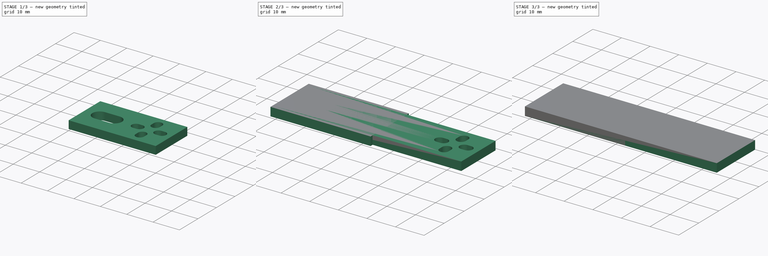
[diagram: build sequence overview — one tinted view per stage of 3, left to right]
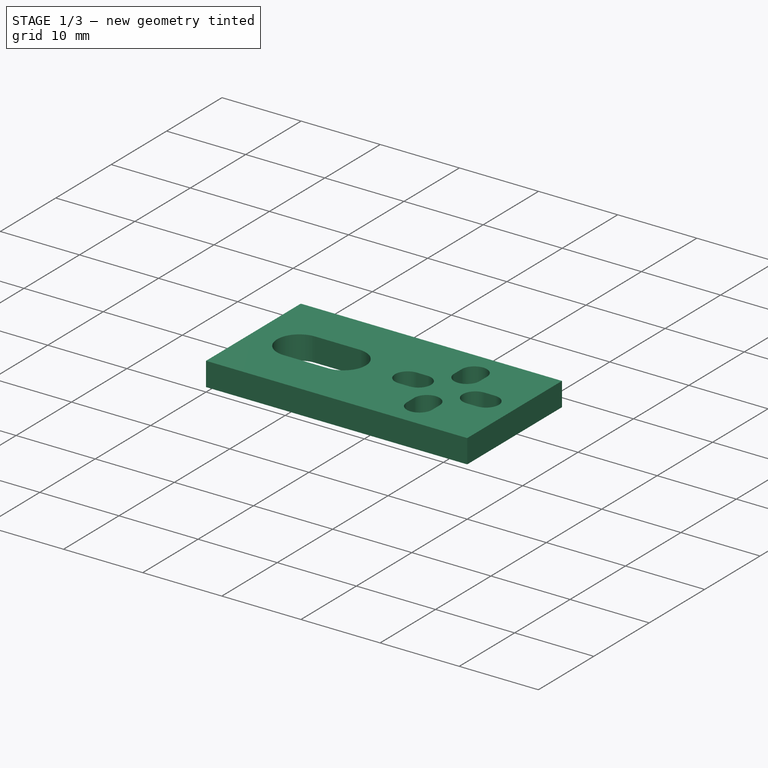
[diagram: stage 1 of 3 — iso view after this stage's code; geometry added in this stage tinted green]
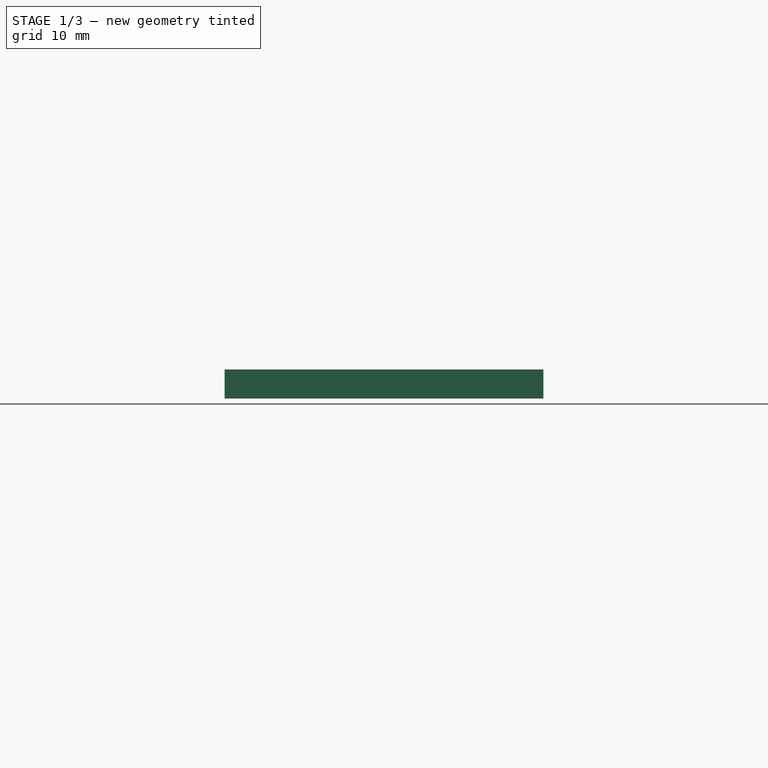
[diagram: stage 1 of 3 — front view after this stage's code; geometry added in this stage tinted green]
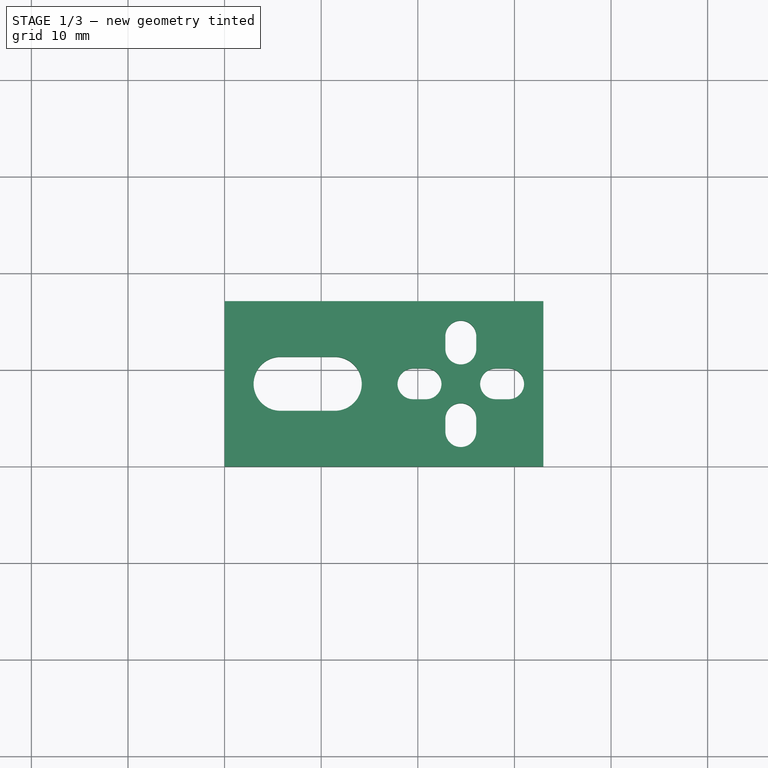
[diagram: stage 1 of 3 — top view after this stage's code; geometry added in this stage tinted green]
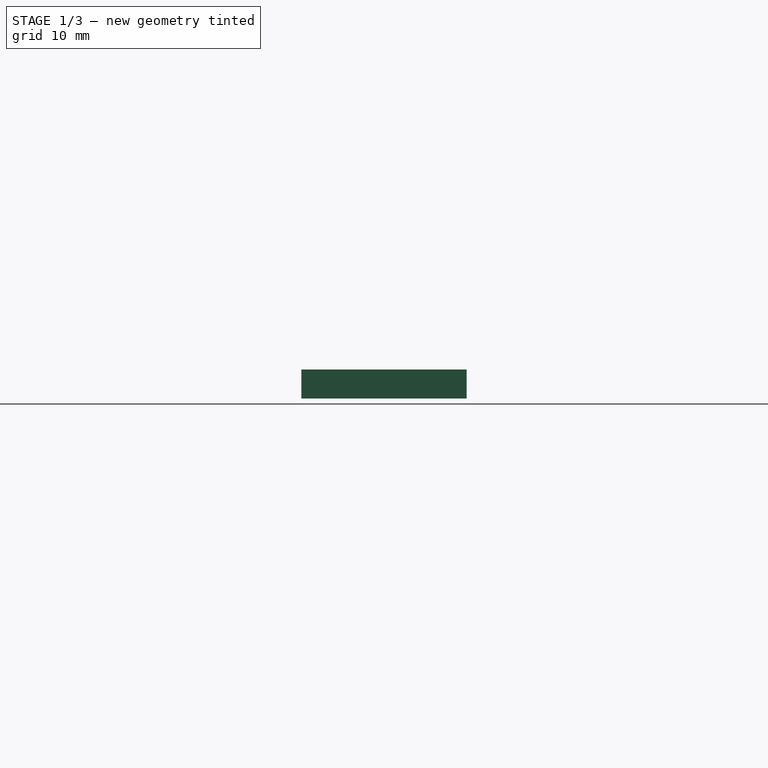
[diagram: stage 1 of 3 — right view after this stage's code; geometry added in this stage tinted green]
FCSTD DOCUMENT  (FreeCAD 0.18R16146 (Git))
Label: limit_switch_plate
License: All rights reserved
LicenseURL: http://en.wikipedia.org/wiki/All_rights_reserved
objects: Path::FeaturePython×10, Part::FeaturePython×4, Sketcher::SketchObject×2, PartDesign::Pad×2, PartDesign::Body×2, App::Part×2, App::FeaturePython×2, App::DocumentObjectGroup×2, Path::FeatureCompoundPython×2
note: 16 computed .brp shape members not serialized (recipe doc carries the construction recipe); baked Part::Feature solids carry a one-line shape summary decoded from their .brp

FEATURE [PartDesign::Body] Body  label="Long"
  Group = -> [Sketch,Pad]
  Origin = -> Origin001
  Tip = -> Pad
FEATURE [App::Part] Part  label="Long_Part"
  Group = -> [Body]
  Origin = -> Origin
FEATURE [Sketcher::SketchObject] Sketch001
  MapMode = 5
  Support = -> [XY_Plane002]
  sketch-geometry (33):
    g0: LineSegment StartX=0 StartY=17.1 StartZ=0 EndX=33 EndY=17.1 EndZ=0
    g1: LineSegment StartX=33 StartY=17.1 StartZ=0 EndX=33 EndY=0 EndZ=0
    g2: LineSegment StartX=33 StartY=0 StartZ=0 EndX=-4.7962e-12 EndY=0 EndZ=0
    g3: LineSegment StartX=-4.7941e-12 StartY=0 StartZ=0 EndX=0 EndY=17.1 EndZ=0
    g4: ArcOfCircle CenterX=24.45 CenterY=13.5 CenterZ=0 NormalX=0 NormalY=0 NormalZ=1 AngleXU=0 Radius=1.6 StartAngle=2e-16 EndAngle=3.14159
    g5: ArcOfCircle CenterX=24.45 CenterY=12.15 CenterZ=0 NormalX=0 NormalY=0 NormalZ=1 AngleXU=0 Radius=1.6 StartAngle=3.14159 EndAngle=6.28319
    g6: LineSegment StartX=22.85 StartY=13.5 StartZ=0 EndX=22.85 EndY=12.15 EndZ=0
    g7: LineSegment StartX=26.05 StartY=13.5 StartZ=0 EndX=26.05 EndY=12.15 EndZ=0
    g8: ArcOfCircle CenterX=24.45 CenterY=4.95 CenterZ=0 NormalX=0 NormalY=0 NormalZ=1 AngleXU=0 Radius=1.6 StartAngle=1e-16 EndAngle=3.14159
    g9: ArcOfCircle CenterX=24.45 CenterY=3.6 CenterZ=0 NormalX=0 NormalY=0 NormalZ=1 AngleXU=0 Radius=1.6 StartAngle=3.14159 EndAngle=6.28319
    g10: LineSegment StartX=22.85 StartY=4.95 StartZ=0 EndX=22.85 EndY=3.6 EndZ=0
    g11: LineSegment StartX=26.05 StartY=4.95 StartZ=0 EndX=26.05 EndY=3.6 EndZ=0
    g12: ArcOfCircle CenterX=19.5 CenterY=8.55 CenterZ=0 NormalX=0 NormalY=0 NormalZ=1 AngleXU=0 Radius=1.6 StartAngle=1.5708 EndAngle=4.71239
    g13: ArcOfCircle CenterX=20.85 CenterY=8.55 CenterZ=0 NormalX=0 NormalY=0 NormalZ=1 AngleXU=0 Radius=1.6 StartAngle=4.71239 EndAngle=7.85398
    g14: LineSegment StartX=19.5 StartY=6.95 StartZ=0 EndX=20.85 EndY=6.95 EndZ=0
    g15: LineSegment StartX=19.5 StartY=10.15 StartZ=0 EndX=20.85 EndY=10.15 EndZ=0
    g16: ArcOfCircle CenterX=28.05 CenterY=8.55 CenterZ=0 NormalX=0 NormalY=0 NormalZ=1 AngleXU=0 Radius=1.6 StartAngle=1.5708 EndAngle=4.71239
    g17: ArcOfCircle CenterX=29.4 CenterY=8.55 CenterZ=0 NormalX=0 NormalY=0 NormalZ=1 AngleXU=0 Radius=1.6 StartAngle=4.71239 EndAngle=7.85398
    g18: LineSegment StartX=28.05 StartY=6.95 StartZ=0 EndX=29.4 EndY=6.95 EndZ=0
    g19: LineSegment StartX=28.05 StartY=10.15 StartZ=0 EndX=29.4 EndY=10.15 EndZ=0
    g20: ArcOfCircle CenterX=5.8 CenterY=8.55 CenterZ=0 NormalX=0 NormalY=0 NormalZ=1 AngleXU=0 Radius=2.8 StartAngle=1.5708 EndAngle=4.71239
    g21: ArcOfCircle CenterX=11.4 CenterY=8.55 CenterZ=0 NormalX=0 NormalY=0 NormalZ=1 AngleXU=0 Radius=2.8 StartAngle=4.71239 EndAngle=7.85398
    g22: LineSegment StartX=5.8 StartY=5.75 StartZ=0 EndX=11.4 EndY=5.75 EndZ=0
    g23: LineSegment StartX=5.8 StartY=11.35 StartZ=0 EndX=11.4 EndY=11.35 EndZ=0
    g24: LineSegment [constr] StartX=5.8 StartY=8.55 StartZ=0 EndX=24.45 EndY=8.55 EndZ=0
    g25: LineSegment [constr] StartX=24.45 StartY=8.55 StartZ=0 EndX=33 EndY=8.55 EndZ=0
    g26: Circle [constr] CenterX=24.45 CenterY=8.55 CenterZ=0 NormalX=0 NormalY=0 NormalZ=1 AngleXU=0 Radius=3.6
    g27: ArcOfCircle [constr] CenterX=11.4 CenterY=11.35 CenterZ=0 NormalX=0 NormalY=0 NormalZ=1 AngleXU=0 Radius=5.6 StartAngle=3.14159 EndAngle=4.71239
    g28: LineSegment [constr] StartX=24.45 StartY=10.55 StartZ=0 EndX=24.45 EndY=6.55 EndZ=0
    g29: LineSegment [constr] StartX=24.45 StartY=15.1 StartZ=0 EndX=24.45 EndY=17.1 EndZ=0
    g30: LineSegment [constr] StartX=24.45 StartY=12.15 StartZ=0 EndX=24.45 EndY=10.55 EndZ=0
    g31: LineSegment [constr] StartX=-2.3943e-12 StartY=8.55 StartZ=0 EndX=3 EndY=8.55 EndZ=0
    g32: LineSegment [constr] StartX=31 StartY=8.55 StartZ=0 EndX=33 EndY=8.55 EndZ=0
  constraints (84):
    c: Coincident(g0,g1)
    c: Coincident(g1,g2)
    c: Coincident(g2,g3)
    c: Coincident(g3,g0)
    c: Horizontal(g0)
    c: Horizontal(g2)
    c: Vertical(g1)
    c: PointOnObject(g0,g-2)
    c: PointOnObject(g1,g-1)
    c: Tangent(g4,g7) = 1.5708
    c: Tangent(g4,g6) = -1.5708
    c: Tangent(g6,g5) = -1.5708
    c: Tangent(g7,g5) = 1.5708
    c: Vertical(g6)
    c: Tangent(g8,g11) = 1.5708
    c: Tangent(g8,g10) = -1.5708
    c: Tangent(g10,g9) = -1.5708
    c: Tangent(g11,g9) = 1.5708
    c: Vertical(g10)
    c: Tangent(g12,g15) = 1.5708
    c: Tangent(g12,g14) = -1.5708
    c: Tangent(g14,g13) = -1.5708
    c: Tangent(g15,g13) = 1.5708
    c: Horizontal(g14)
    c: Tangent(g16,g19) = 1.5708
    c: Tangent(g16,g18) = -1.5708
    c: Tangent(g18,g17) = -1.5708
    c: Tangent(g19,g17) = 1.5708
    c: Horizontal(g18)
    c: Tangent(g20,g23) = 1.5708
    c: Tangent(g20,g22) = -1.5708
    c: Tangent(g22,g21) = -1.5708
    c: Tangent(g23,g21) = 1.5708
    c: Horizontal(g22)
    c: Symmetric(g0,g2,g24)
    c: Symmetric(g20,g20,g24)
    c: Symmetric(g12,g12,g24)
    c: Equal(g13,g5)
    c: Equal(g13,g8)
    c: Equal(g13,g16)
    c: Symmetric(g16,g16,g24)
    c: Coincident(g25,g24)
    c: PointOnObject(g25,g1)
    c: Symmetric(g8,g5,g25)
    c: Equal(g19,g6)
    c: Equal(g19,g14)
    c: Equal(g18,g11)
    c: Coincident(g26,g24)
    c: PointOnObject(g16,g26)
    c: PointOnObject(g8,g26)
    c: Diameter(g17) = 3.2
    c: Diameter(g21) = 5.6
    c: DistanceY(g3,g3) = 17.1
    c: Coincident(g27,g21)
    c: Coincident(g27,g21)
    c: Coincident(g27,g20)
    c: PointOnObject(g28,g5)
    c: PointOnObject(g28,g8)
    c: Vertical(g28)
    c: DistanceY(g28,g28) = 4
    c: PointOnObject(g24,g28)
    c: PointOnObject(g29,g0)
    c: Perpendicular(g4,g29)
    c: Vertical(g29)
    c: DistanceY(g29,g29) = 2
    c: PointOnObject(g29,g4)
    c: Parallel(g6,g7)
    c: Parallel(g10,g11)
    c: Coincident(g30,g5)
    c: Coincident(g30,g28)
    c: Vertical(g30)
    c: PointOnObject(g13,g26)
    c: Coincident(g24,g20)
    c: Horizontal(g31)
    c: Perpendicular(g20,g31)
    c: DistanceX(g31,g31) = 3
    c: PointOnObject(g31,g20)
    c: PointOnObject(g31,g3)
    c: Symmetric(g0,g1,g25)
    c: PointOnObject(g32,g17)
    c: Coincident(g32,g25)
    c: Perpendicular(g17,g32)
    c: Equal(g32,g29)
    c: DistanceX(g0,g0) = 33
FEATURE [PartDesign::Pad] Pad001
  Length = 3
  Length2 = 100
  Profile = -> Sketch001
  Type = 0
FEATURE [Path::FeaturePython] Contour  # Path/CAM operation (typed FeaturePython)
  Active = true
  AreaParams:
    Tolerance = 1e-07
    FitArcs = True
    Simplify = False
    CleanDistance = 0.0
    Accuracy = 0.01
    Unit = 1.0
    MinArcPoints = 4
    MaxArcPoints = 100
    ClipperScale = 10000000.0
    Fill = 0
    Coplanar = 2
    Reorient = True
    Outline = False
    Explode = False
    OpenMode = 0
    Deflection = 0.01
    SubjectFill = 0
    ClipFill = 0
    Offset = 1.5
    ExtraPass = 0
    Stepover = 0.0
    LastStepover = 0.0
    JoinType = 0
    EndType = 0
    MiterLimit = 2.0
    RoundPrecision = 0.0
    PocketMode = 0
    ToolRadius = 1.0
    PocketExtraOffset = 0.0
    PocketStepover = 0.0
    PocketLastStepover = 0.0
    FromCenter = False
    Angle = 45.0
    AngleShift = 0.0
    Shift = 0.0
    Thicken = False
    SectionCount = -1
    Stepdown = 1.0
    SectionOffset = 0.0
    SectionTolerance = 1e-06
    SectionMode = 2
    Project = False
  ClearanceHeight = 8
  Direction = 1
  FinalDepth = -0.2
  JoinType = 0
  MiterLimit = 0.1
  OffsetExtra = 0
  OpFinalDepth = 0
  OpStartDepth = 3
  OpStockZMax = 3
  OpStockZMin = 0
  OpToolDiameter = 3
  PathParams = {'orientation': 0, 'feedrate': 13.33, 'feedrate_v': 6.66, 'verbose': True, 'resume_height': 6.0, 'retraction': 8.0, 'return_end': True, 'preamble': False}
  SafeHeight = 6
  Side = 0
  StartDepth = 3.2
  StartPoint = (0,0,0)
  StepDown = 0.3
  ToolController = -> T3__AluminiumMill
  UseComp = true
  UseStartPoint = false
  expr: ClearanceHeight = OpStockZMax + SetupSheet.ClearanceHeightOffset
  expr: SafeHeight = OpStockZMax + SetupSheet.SafeHeightOffset
  expr: StepDown = 0.3
  expr: FinalDepth = -0.2mm
  expr: StartDepth = 3.2mm
FEATURE [Path::FeaturePython] Profile_Edges  # Path/CAM operation (typed FeaturePython)
  Active = true
  AreaParams:
    Tolerance = 1e-07
    FitArcs = True
    Simplify = False
    CleanDistance = 0.0
    Accuracy = 0.01
    Unit = 1.0
    MinArcPoints = 4
    MaxArcPoints = 100
    ClipperScale = 10000000.0
    Fill = 0
    Coplanar = 0
    Reorient = True
    Outline = False
    Explode = False
    OpenMode = 0
    Deflection = 0.01
    SubjectFill = 0
    ClipFill = 0
    Offset = -1.5
    ExtraPass = 0
    Stepover = 0.0
    LastStepover = 0.0
    JoinType = 0
    EndType = 0
    MiterLimit = 2.0
    RoundPrecision = 0.0
    PocketMode = 0
    ToolRadius = 1.0
    PocketExtraOffset = 0.0
    PocketStepover = 0.0
    PocketLastStepover = 0.0
    FromCenter = False
    Angle = 45.0
    AngleShift = 0.0
    Shift = 0.0
    Thicken = False
    SectionCount = -1
    Stepdown = 1.0
    SectionOffset = 0.0
    SectionTolerance = 1e-06
    SectionMode = 2
    Project = False
  Base = -> [Clone]
  ClearanceHeight = 8
  Direction = 0
  FinalDepth = -0.2
  JoinType = 0
  MiterLimit = 0.1
  OffsetExtra = 0
  OpFinalDepth = 3
  OpStartDepth = 3.3
  OpStockZMax = 3
  OpStockZMin = 0
  OpToolDiameter = 3
  PathParams = {'orientation': 1, 'feedrate': 13.33, 'feedrate_v': 6.66, 'verbose': True, 'resume_height': 6.0, 'retraction': 8.0, 'return_end': True, 'preamble': False}
  SafeHeight = 6
  Side = 1
  StartDepth = 3.2
  StartPoint = (0,0,0)
  StepDown = 0.3
  ToolController = -> T3__AluminiumMill
  UseComp = true
  UseStartPoint = false
  expr: ClearanceHeight = OpStockZMax + SetupSheet.ClearanceHeightOffset
  expr: SafeHeight = OpStockZMax + SetupSheet.SafeHeightOffset
  expr: StepDown = 0.3
  expr: FinalDepth = -0.2mm
  expr: StartDepth = 3.2mm
FEATURE [Path::FeaturePython] TagDressup001  # Path/CAM operation (typed FeaturePython)
  Angle = 45
  Base = -> Contour
  Height = 0.8
  Positions = (4) [(48.75,18.6,0),(16.25,18.6,0),(16.25,-1.5,0),(48.75,-1.5,0)]
  Radius = 0
  SegmentationFactor = 50
  Width = 2
FEATURE [Path::FeatureCompoundPython] Operations  # Path/CAM operation (typed FeaturePython)
  Group = -> [Profile_Edges,TagDressup001]
  UsePlacements = false
FEATURE [Path::FeaturePython] Job  label="LongPlate_Job"  # Path/CAM operation (typed FeaturePython)
  GeometryTolerance = 0.01
  Model = -> Model
  Operations = -> Operations
  PostProcessor = 1
  PostProcessorOutputFile = gcode/long_plate.ngc
  SetupSheet = -> SetupSheet
  Stock = -> Stock
  ToolController = -> [T3__AluminiumMill]
FEATURE [Path::FeaturePython] T3__AluminiumMill001  label="T3: AluminiumMill001"  # Path/CAM operation (typed FeaturePython)
  HorizFeed = 13.33
  HorizRapid = 33.33
  SpindleDir = 0
  SpindleSpeed = 17000
  ToolNumber = 3
  VertFeed = 6.66
  VertRapid = 33.33
  expr: VertRapid = SetupSheet001.VertRapid
  expr: HorizFeed = 800mm / min
FEATURE [Path::FeaturePython] Contour001  # Path/CAM operation (typed FeaturePython)
  Active = true
  AreaParams:
    Tolerance = 1e-07
    FitArcs = True
    Simplify = False
    CleanDistance = 0.0
    Accuracy = 0.01
    Unit = 1.0
    MinArcPoints = 4
    MaxArcPoints = 100
    ClipperScale = 10000000.0
    Fill = 0
    Coplanar = 2
    Reorient = True
    Outline = False
    Explode = False
    OpenMode = 0
    Deflection = 0.01
    SubjectFill = 0
    ClipFill = 0
    Offset = 1.5
    ExtraPass = 0
    Stepover = 0.0
    LastStepover = 0.0
    JoinType = 0
    EndType = 0
    MiterLimit = 2.0
    RoundPrecision = 0.0
    PocketMode = 0
    ToolRadius = 1.0
    PocketExtraOffset = 0.0
    PocketStepover = 0.0
    PocketLastStepover = 0.0
    FromCenter = False
    Angle = 45.0
    AngleShift = 0.0
    Shift = 0.0
    Thicken = False
    SectionCount = -1
    Stepdown = 1.0
    SectionOffset = 0.0
    SectionTolerance = 1e-06
    SectionMode = 2
    Project = False
  ClearanceHeight = 8
  Direction = 1
  FinalDepth = -0.2
  JoinType = 0
  MiterLimit = 0.1
  OffsetExtra = 0
  OpFinalDepth = 0
  OpStartDepth = 3
  OpStockZMax = 3
  OpStockZMin = 0
  OpToolDiameter = 3
  PathParams = {'orientation': 0, 'feedrate': 13.33, 'feedrate_v': 6.66, 'verbose': True, 'resume_height': 6.0, 'retraction': 8.0, 'return_end': True, 'preamble': False}
  SafeHeight = 6
  Side = 0
  StartDepth = 3.2
  StartPoint = (0,0,0)
  StepDown = 0.3
  ToolController = -> T3__AluminiumMill001
  UseComp = true
  UseStartPoint = false
  expr: ClearanceHeight = OpStockZMax + SetupSheet.ClearanceHeightOffset
  expr: SafeHeight = OpStockZMax + SetupSheet.SafeHeightOffset
  expr: StepDown = 0.3
  expr: FinalDepth = -0.2mm
  expr: StartDepth = 3.2mm
FEATURE [App::FeaturePython] SetupSheet001  # Path/CAM operation (typed FeaturePython)
  ClearanceHeightExpression = OpStockZMax+SetupSheet.ClearanceHeightOffset
  ClearanceHeightOffset = 5
  FinalDepthExpression = -0.2mm
  HorizRapid = 33.33
  SafeHeightExpression = OpStockZMax+SetupSheet.SafeHeightOffset
  SafeHeightOffset = 3
  StartDepthExpression = 3.2mm
  StepDownExpression = 0.3
  VertRapid = 33.33
FEATURE [Path::FeaturePython] TagDressup002  # Path/CAM operation (typed FeaturePython)
  Angle = 45
  Base = -> Contour001
  Disabled = [2,3]
  Height = 0.8
  Positions = (4) [(16.25,18.6,-0.199999),(16.25,-1.5,-0.199999),(48.75,18.6,-0.199999),(48.75,-1.5,-0.199999)]
  Radius = 0
  SegmentationFactor = 50
  Width = 2
FEATURE [Part::FeaturePython] Clone001  label="Model-Part001"  # Draft clone (typed FeaturePython)
  AttacherType = Attacher::AttachEngine3D
  Fuse = false
  Objects = -> [Part001]
  PathResource = Model
  Scale = (1,1,1)
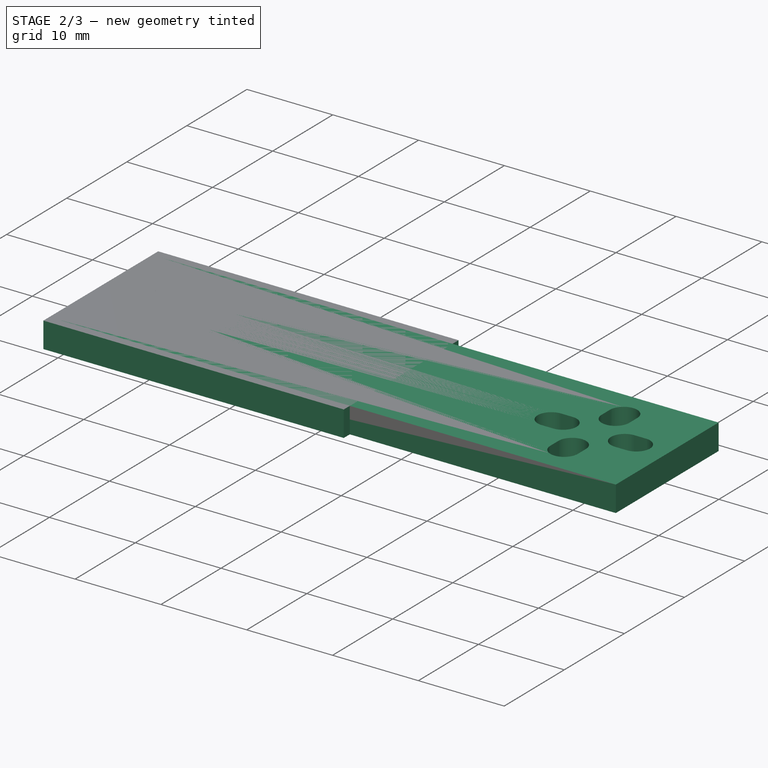
[diagram: stage 2 of 3 — iso view after this stage's code; geometry added in this stage tinted green]
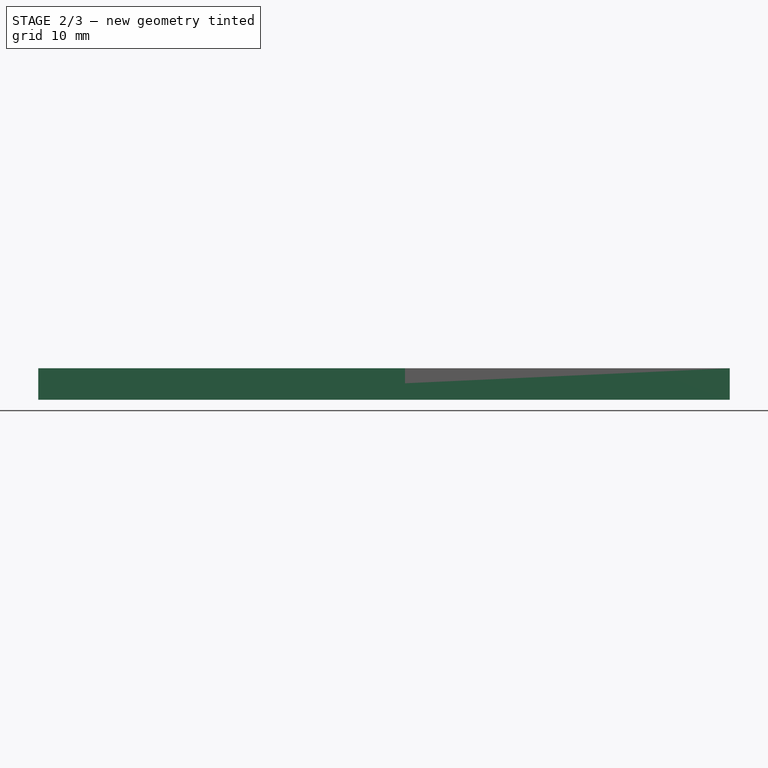
[diagram: stage 2 of 3 — front view after this stage's code; geometry added in this stage tinted green]
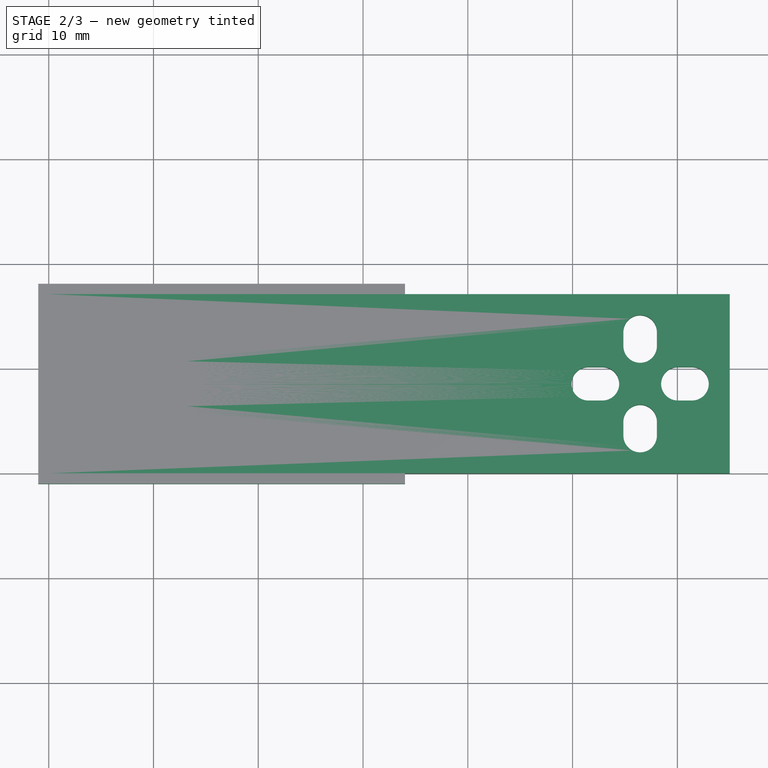
[diagram: stage 2 of 3 — top view after this stage's code; geometry added in this stage tinted green]
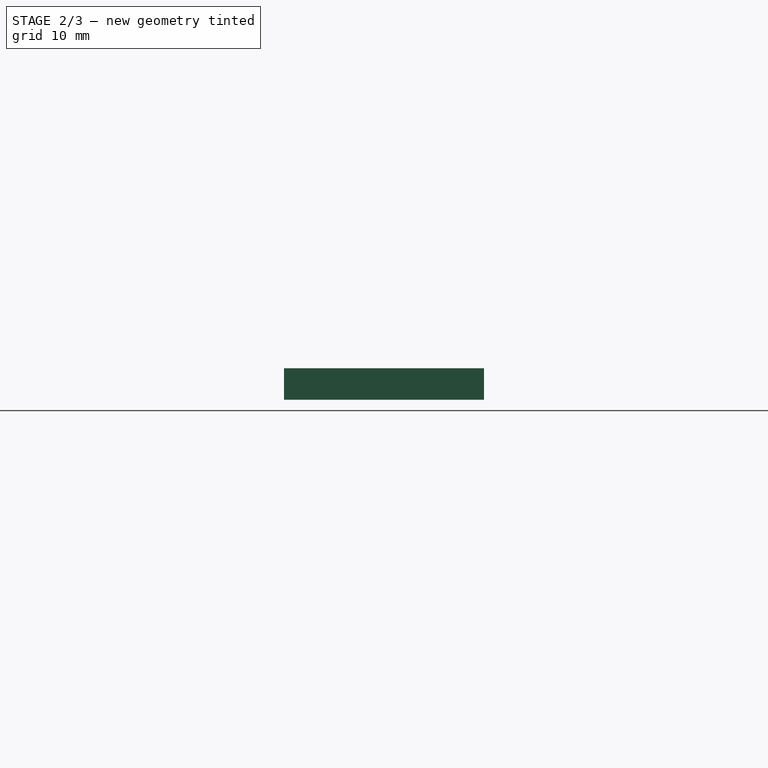
[diagram: stage 2 of 3 — right view after this stage's code; geometry added in this stage tinted green]
FEATURE [Sketcher::SketchObject] Sketch
  MapMode = 5
  Support = -> [XY_Plane001]
  sketch-geometry (33):
    g0: LineSegment StartX=0 StartY=17.1 StartZ=0 EndX=65 EndY=17.1 EndZ=0
    g1: LineSegment StartX=65 StartY=17.1 StartZ=0 EndX=65 EndY=0 EndZ=0
    g2: LineSegment StartX=65 StartY=0 StartZ=0 EndX=0 EndY=0 EndZ=0
    g3: LineSegment StartX=0 StartY=0 StartZ=0 EndX=0 EndY=17.1 EndZ=0
    g4: ArcOfCircle CenterX=56.45 CenterY=13.5 CenterZ=0 NormalX=0 NormalY=0 NormalZ=1 AngleXU=0 Radius=1.6 StartAngle=1e-16 EndAngle=3.14159
    g5: ArcOfCircle CenterX=56.45 CenterY=12.15 CenterZ=0 NormalX=0 NormalY=0 NormalZ=1 AngleXU=0 Radius=1.6 StartAngle=3.14159 EndAngle=6.28319
    g6: LineSegment StartX=54.85 StartY=13.5 StartZ=0 EndX=54.85 EndY=12.15 EndZ=0
    g7: LineSegment StartX=58.05 StartY=13.5 StartZ=0 EndX=58.05 EndY=12.15 EndZ=0
    g8: ArcOfCircle CenterX=56.45 CenterY=4.95 CenterZ=0 NormalX=0 NormalY=0 NormalZ=1 AngleXU=0 Radius=1.6 StartAngle=2e-16 EndAngle=3.14159
    g9: ArcOfCircle CenterX=56.45 CenterY=3.6 CenterZ=0 NormalX=0 NormalY=0 NormalZ=1 AngleXU=0 Radius=1.6 StartAngle=3.14159 EndAngle=6.28319
    g10: LineSegment StartX=54.85 StartY=4.95 StartZ=0 EndX=54.85 EndY=3.6 EndZ=0
    g11: LineSegment StartX=58.05 StartY=4.95 StartZ=0 EndX=58.05 EndY=3.6 EndZ=0
    g12: ArcOfCircle CenterX=51.5 CenterY=8.55 CenterZ=0 NormalX=0 NormalY=0 NormalZ=1 AngleXU=0 Radius=1.6 StartAngle=1.5708 EndAngle=4.71239
    g13: ArcOfCircle CenterX=52.85 CenterY=8.55 CenterZ=0 NormalX=0 NormalY=0 NormalZ=1 AngleXU=0 Radius=1.6 StartAngle=4.71239 EndAngle=7.85398
    g14: LineSegment StartX=51.5 StartY=6.95 StartZ=0 EndX=52.85 EndY=6.95 EndZ=0
    g15: LineSegment StartX=51.5 StartY=10.15 StartZ=0 EndX=52.85 EndY=10.15 EndZ=0
    g16: ArcOfCircle CenterX=60.05 CenterY=8.55 CenterZ=0 NormalX=0 NormalY=0 NormalZ=1 AngleXU=0 Radius=1.6 StartAngle=1.5708 EndAngle=4.71239
    g17: ArcOfCircle CenterX=61.4 CenterY=8.55 CenterZ=0 NormalX=0 NormalY=0 NormalZ=1 AngleXU=0 Radius=1.6 StartAngle=4.71239 EndAngle=7.85398
    g18: LineSegment StartX=60.05 StartY=6.95 StartZ=0 EndX=61.4 EndY=6.95 EndZ=0
    g19: LineSegment StartX=60.05 StartY=10.15 StartZ=0 EndX=61.4 EndY=10.15 EndZ=0
    g20: ArcOfCircle CenterX=5.8 CenterY=8.55 CenterZ=0 NormalX=0 NormalY=0 NormalZ=1 AngleXU=0 Radius=2.8 StartAngle=1.5708 EndAngle=4.71239
    g21: ArcOfCircle CenterX=11.4 CenterY=8.55 CenterZ=0 NormalX=0 NormalY=0 NormalZ=1 AngleXU=0 Radius=2.8 StartAngle=4.71239 EndAngle=7.85398
    g22: LineSegment StartX=5.8 StartY=5.75 StartZ=0 EndX=11.4 EndY=5.75 EndZ=0
    g23: LineSegment StartX=5.8 StartY=11.35 StartZ=0 EndX=11.4 EndY=11.35 EndZ=0
    g24: LineSegment [constr] StartX=5.8 StartY=8.55 StartZ=0 EndX=56.45 EndY=8.55 EndZ=0
    g25: LineSegment [constr] StartX=56.45 StartY=8.55 StartZ=0 EndX=65 EndY=8.55 EndZ=0
    g26: Circle [constr] CenterX=56.45 CenterY=8.55 CenterZ=0 NormalX=0 NormalY=0 NormalZ=1 AngleXU=0 Radius=3.6
    g27: ArcOfCircle [constr] CenterX=11.4 CenterY=11.35 CenterZ=0 NormalX=0 NormalY=0 NormalZ=1 AngleXU=0 Radius=5.6 StartAngle=3.14159 EndAngle=4.71239
    g28: LineSegment [constr] StartX=56.45 StartY=10.55 StartZ=0 EndX=56.45 EndY=6.55 EndZ=0
    g29: LineSegment [constr] StartX=56.45 StartY=15.1 StartZ=0 EndX=56.45 EndY=17.1 EndZ=0
    g30: LineSegment [constr] StartX=56.45 StartY=12.15 StartZ=0 EndX=56.45 EndY=10.55 EndZ=0
    g31: LineSegment [constr] StartX=1e-16 StartY=8.55 StartZ=0 EndX=3 EndY=8.55 EndZ=0
    g32: LineSegment [constr] StartX=63 StartY=8.55 StartZ=0 EndX=65 EndY=8.55 EndZ=0
  constraints (84):
    c: Coincident(g0,g1)
    c: Coincident(g1,g2)
    c: Coincident(g2,g3)
    c: Coincident(g3,g0)
    c: Horizontal(g0)
    c: Horizontal(g2)
    c: Vertical(g1)
    c: PointOnObject(g0,g-2)
    c: PointOnObject(g1,g-1)
    c: Tangent(g4,g7) = 1.5708
    c: Tangent(g4,g6) = -1.5708
    c: Tangent(g6,g5) = -1.5708
    c: Tangent(g7,g5) = 1.5708
    c: Vertical(g6)
    c: Tangent(g8,g11) = 1.5708
    c: Tangent(g8,g10) = -1.5708
    c: Tangent(g10,g9) = -1.5708
    c: Tangent(g11,g9) = 1.5708
    c: Vertical(g10)
    c: Tangent(g12,g15) = 1.5708
    c: Tangent(g12,g14) = -1.5708
    c: Tangent(g14,g13) = -1.5708
    c: Tangent(g15,g13) = 1.5708
    c: Horizontal(g14)
    c: Tangent(g16,g19) = 1.5708
    c: Tangent(g16,g18) = -1.5708
    c: Tangent(g18,g17) = -1.5708
    c: Tangent(g19,g17) = 1.5708
    c: Horizontal(g18)
    c: Tangent(g20,g23) = 1.5708
    c: Tangent(g20,g22) = -1.5708
    c: Tangent(g22,g21) = -1.5708
    c: Tangent(g23,g21) = 1.5708
    c: Horizontal(g22)
    c: Symmetric(g0,g2,g24)
    c: Symmetric(g20,g20,g24)
    c: Symmetric(g12,g12,g24)
    c: Equal(g13,g5)
    c: Equal(g13,g8)
    c: Equal(g13,g16)
    c: Symmetric(g16,g16,g24)
    c: Coincident(g25,g24)
    c: PointOnObject(g25,g1)
    c: Symmetric(g8,g5,g25)
    c: Equal(g19,g6)
    c: Equal(g19,g14)
    c: Equal(g18,g11)
    c: Coincident(g26,g24)
    c: PointOnObject(g16,g26)
    c: PointOnObject(g8,g26)
    c: Diameter(g17) = 3.2
    c: Diameter(g21) = 5.6
    c: DistanceY(g3,g3) = 17.1
    c: Coincident(g27,g21)
    c: Coincident(g27,g21)
    c: Coincident(g27,g20)
    c: PointOnObject(g28,g5)
    c: PointOnObject(g28,g8)
    c: Vertical(g28)
    c: DistanceY(g28,g28) = 4
    c: PointOnObject(g24,g28)
    c: PointOnObject(g29,g0)
    c: Perpendicular(g4,g29)
    c: Vertical(g29)
    c: DistanceY(g29,g29) = 2
    c: PointOnObject(g29,g4)
    c: Parallel(g6,g7)
    c: Parallel(g10,g11)
    c: Coincident(g30,g5)
    c: Coincident(g30,g28)
    c: Vertical(g30)
    c: PointOnObject(g13,g26)
    c: Coincident(g24,g20)
    c: Horizontal(g31)
    c: Perpendicular(g20,g31)
    c: DistanceX(g31,g31) = 3
    c: PointOnObject(g31,g20)
    c: PointOnObject(g31,g3)
    c: DistanceX(g0,g0) = 65
    c: Symmetric(g0,g1,g25)
    c: PointOnObject(g32,g17)
    c: Coincident(g32,g25)
    c: Perpendicular(g17,g32)
    c: Equal(g32,g29)
FEATURE [PartDesign::Pad] Pad
  Length = 3
  Length2 = 100
  Profile = -> Sketch
  Type = 0
FEATURE [App::DocumentObjectGroup] Model001
  Group = -> [Clone001]
FEATURE [Part::FeaturePython] Stock001  # WARN: FeaturePython — macro-defined, semantics opaque (R4)
  Base = -> Model001
  ExtXneg = 1
  ExtXpos = 1
  ExtYneg = 1
  ExtYpos = 1
  ExtZneg = 0
  ExtZpos = 0
  StockType = FromBase
FEATURE [Path::FeaturePython] Profile_Edges001  # Path/CAM operation (typed FeaturePython)
  Active = true
  AreaParams:
    Tolerance = 1e-07
    FitArcs = True
    Simplify = False
    CleanDistance = 0.0
    Accuracy = 0.01
    Unit = 1.0
    MinArcPoints = 4
    MaxArcPoints = 100
    ClipperScale = 10000000.0
    Fill = 0
    Coplanar = 0
    Reorient = True
    Outline = False
    Explode = False
    OpenMode = 0
    Deflection = 0.01
    SubjectFill = 0
    ClipFill = 0
    Offset = -1.5
    ExtraPass = 0
    Stepover = 0.0
    LastStepover = 0.0
    JoinType = 0
    EndType = 0
    MiterLimit = 2.0
    RoundPrecision = 0.0
    PocketMode = 0
    ToolRadius = 1.0
    PocketExtraOffset = 0.0
    PocketStepover = 0.0
    PocketLastStepover = 0.0
    FromCenter = False
    Angle = 45.0
    AngleShift = 0.0
    Shift = 0.0
    Thicken = False
    SectionCount = -1
    Stepdown = 1.0
    SectionOffset = 0.0
    SectionTolerance = 1e-06
    SectionMode = 2
    Project = False
  Base = -> [Clone001]
  ClearanceHeight = 8
  Direction = 0
  FinalDepth = -0.2
  JoinType = 0
  MiterLimit = 0.1
  OffsetExtra = 0
  OpFinalDepth = 3
  OpStartDepth = 3.3
  OpStockZMax = 3
  OpStockZMin = 0
  OpToolDiameter = 3
  PathParams = {'orientation': 1, 'feedrate': 13.33, 'feedrate_v': 6.66, 'verbose': True, 'resume_height': 6.0, 'retraction': 8.0, 'return_end': True, 'preamble': False}
  SafeHeight = 6
  Side = 1
  StartDepth = 3.2
  StartPoint = (0,0,0)
  StepDown = 0.3
  ToolController = -> T3__AluminiumMill001
  UseComp = true
  UseStartPoint = false
  expr: ClearanceHeight = OpStockZMax + SetupSheet.ClearanceHeightOffset
  expr: SafeHeight = OpStockZMax + SetupSheet.SafeHeightOffset
  expr: StepDown = 0.3
  expr: FinalDepth = -0.2mm
  expr: StartDepth = 3.2mm
FEATURE [Path::FeatureCompoundPython] Operations001  # Path/CAM operation (typed FeaturePython)
  Group = -> [Profile_Edges001,TagDressup002]
  UsePlacements = false
FEATURE [Path::FeaturePython] Job001  label="ShortPlate_Job"  # Path/CAM operation (typed FeaturePython)
  GeometryTolerance = 0.01
  Model = -> Model001
  Operations = -> Operations001
  PostProcessor = 1
  PostProcessorOutputFile = gcode/short_plate.ngc
  SetupSheet = -> SetupSheet001
  Stock = -> Stock001
  ToolController = -> [T3__AluminiumMill001]
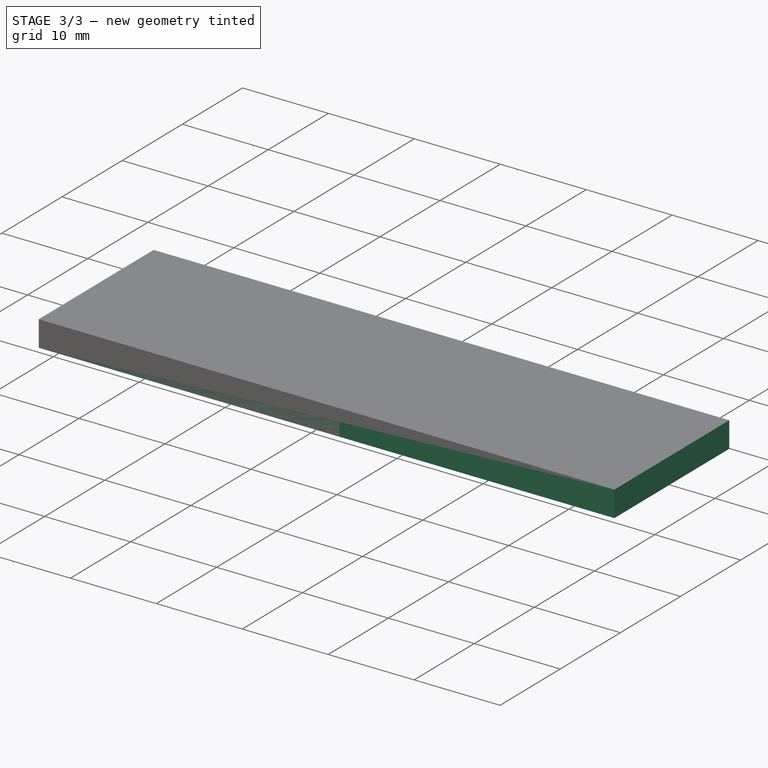
[diagram: stage 3 of 3 — iso view after this stage's code; geometry added in this stage tinted green]
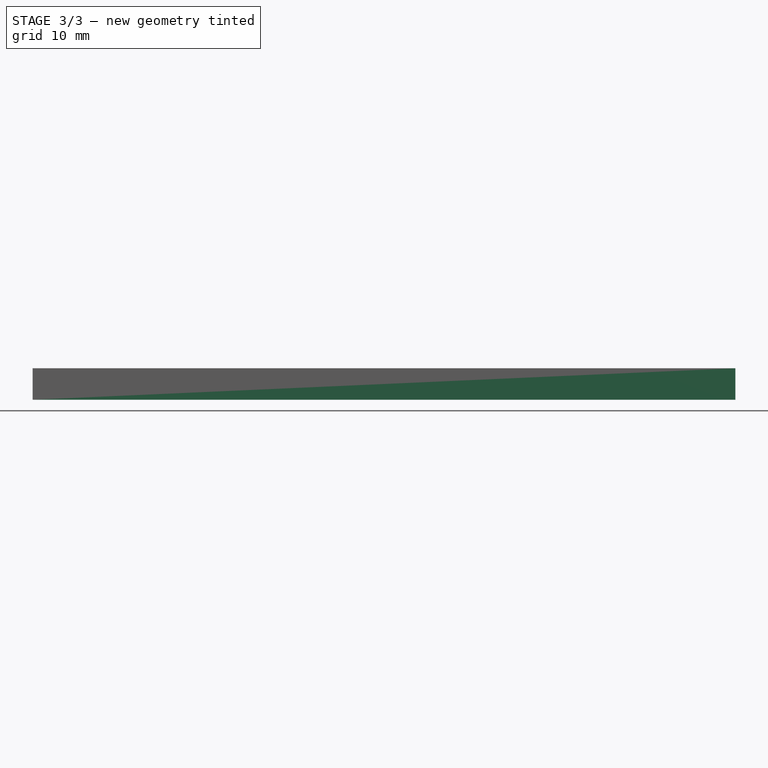
[diagram: stage 3 of 3 — front view after this stage's code; geometry added in this stage tinted green]
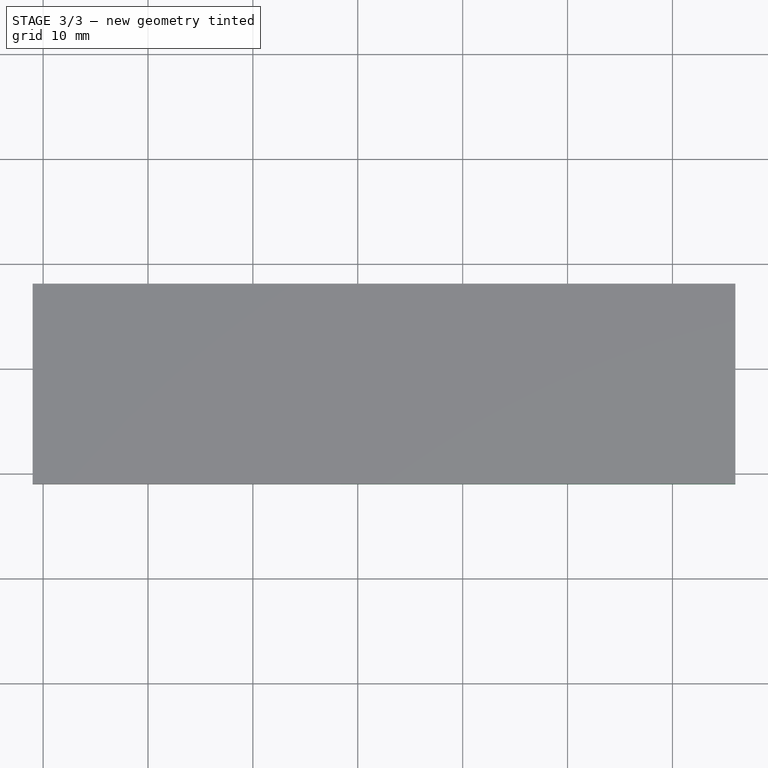
[diagram: stage 3 of 3 — top view after this stage's code; geometry added in this stage tinted green]
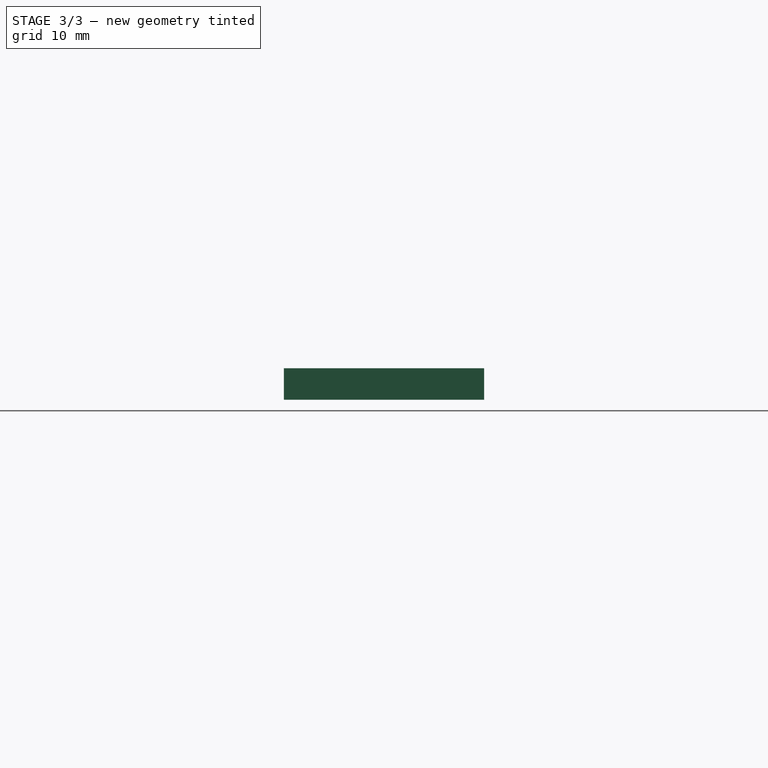
[diagram: stage 3 of 3 — right view after this stage's code; geometry added in this stage tinted green]
FEATURE [PartDesign::Body] Body001  label="Short"
  Group = -> [Sketch001,Pad001]
  Origin = -> Origin002
  Tip = -> Pad001
FEATURE [App::Part] Part001  label="Short_Part"
  Group = -> [Body001]
  Origin = -> Origin003
FEATURE [App::FeaturePython] SetupSheet  # Path/CAM operation (typed FeaturePython)
  ClearanceHeightExpression = OpStockZMax+SetupSheet.ClearanceHeightOffset
  ClearanceHeightOffset = 5
  FinalDepthExpression = -0.2mm
  HorizRapid = 33.33
  SafeHeightExpression = OpStockZMax+SetupSheet.SafeHeightOffset
  SafeHeightOffset = 3
  StartDepthExpression = 3.2mm
  StepDownExpression = 0.3
  VertRapid = 33.33
FEATURE [Part::FeaturePython] Clone  label="Model-Part"  # Draft clone (typed FeaturePython)
  AttacherType = Attacher::AttachEngine3D
  Fuse = false
  Objects = -> [Part]
  PathResource = Model
  Scale = (1,1,1)
FEATURE [App::DocumentObjectGroup] Model
  Group = -> [Clone]
FEATURE [Path::FeaturePython] T3__AluminiumMill  label="T3: AluminiumMill"  # Path/CAM operation (typed FeaturePython)
  HorizFeed = 13.33
  HorizRapid = 33.33
  SpindleDir = 0
  SpindleSpeed = 17000
  ToolNumber = 3
  VertFeed = 6.66
  VertRapid = 33.33
  expr: VertRapid = SetupSheet.VertRapid
  expr: HorizFeed = 800mm / min
FEATURE [Part::FeaturePython] Stock  # WARN: FeaturePython — macro-defined, semantics opaque (R4)
  Base = -> Model
  ExtXneg = 1
  ExtXpos = 1
  ExtYneg = 1
  ExtYpos = 1
  ExtZneg = 0
  ExtZpos = 0
  StockType = FromBase
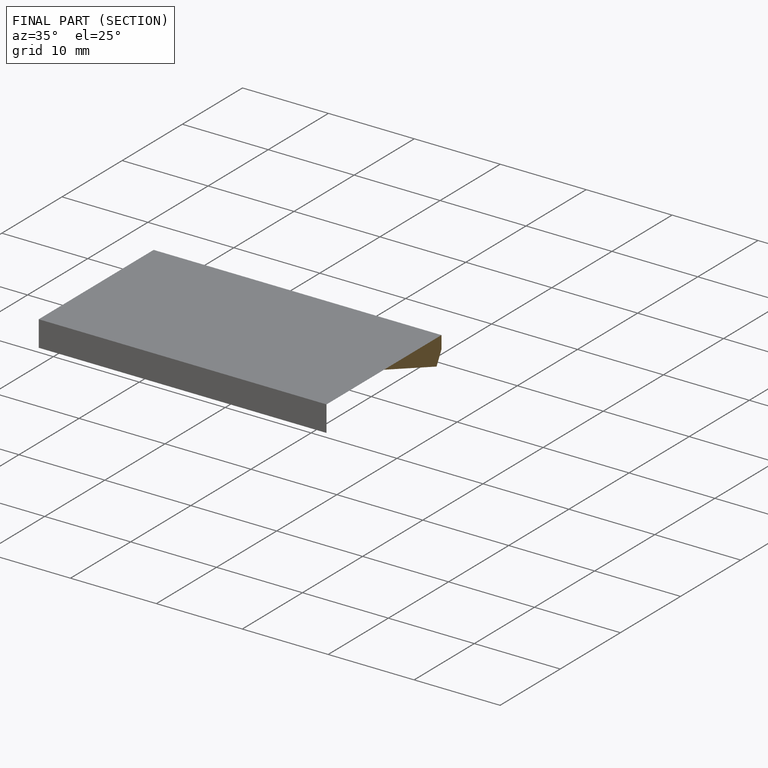
[diagram: finished part — half-section view (interior)]
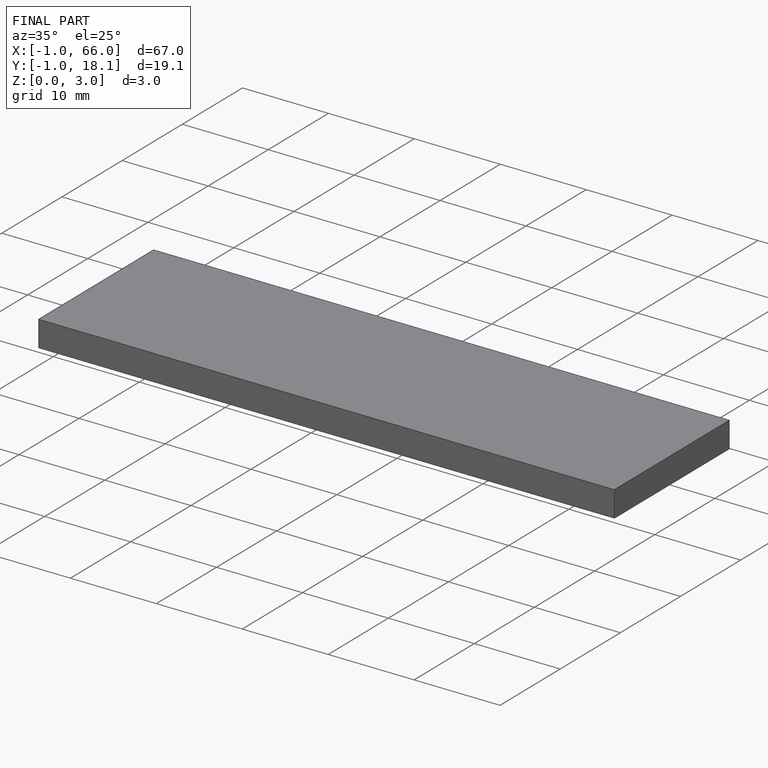
[diagram: finished part — iso view with bounding-box wireframe]
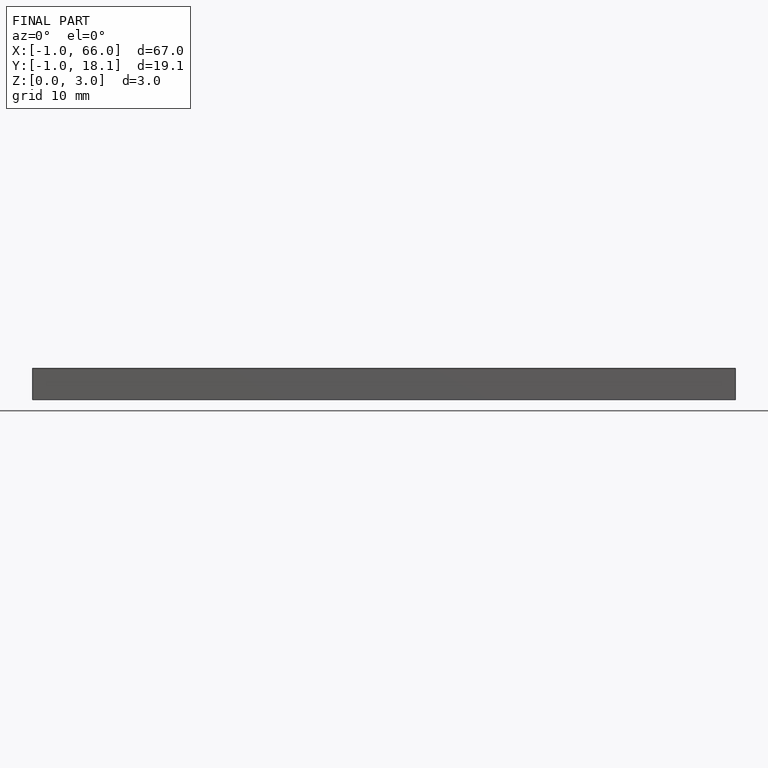
[diagram: finished part — front view with bounding-box wireframe]
